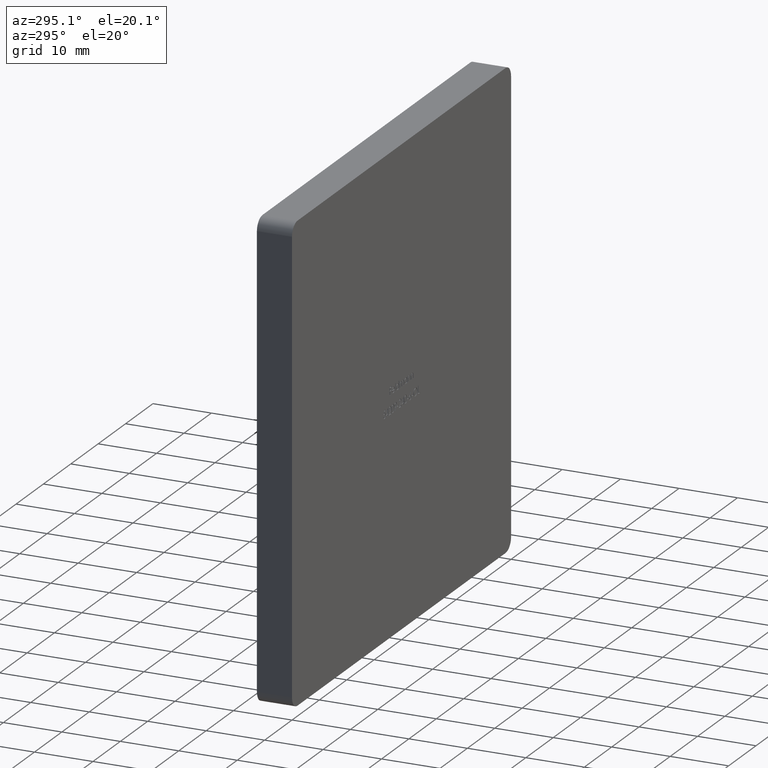
[diagram: clean part render]
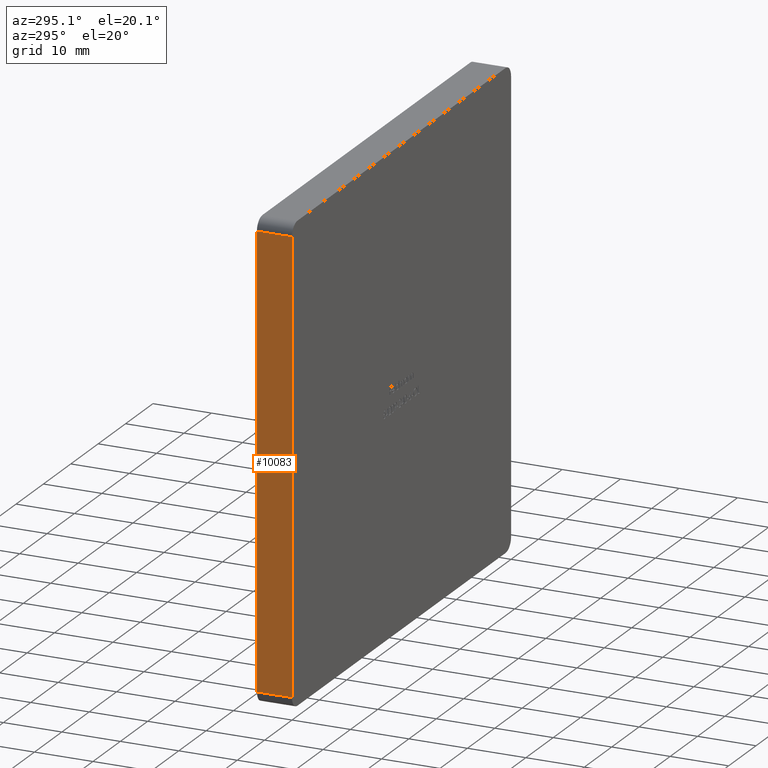
[diagram: same view with one face highlighted and labeled with its STEP entity id]
A machine part, auxiliary view. The second image highlights one B-rep face of the part: STEP entity #10083.
In plain terms, the highlighted planar face has unit normal (1, 0, -0).
Its self-contained STEP definition (entity closure, byte-faithful):
#91 = DIRECTION ( 'NONE',  ( 1.734723475976807094E-16, 0.000000000000000000, 1.000000000000000000 ) ) ;
#1211 = CARTESIAN_POINT ( 'NONE',  ( -39.99999999999999289, 6.000000000000000000, -39.99999999999999289 ) ) ;
#1738 = EDGE_LOOP ( 'NONE', ( #5747, #13507, #13701, #12399 ) ) ;
#1983 = FACE_OUTER_BOUND ( 'NONE', #1738, .T. ) ;
#2444 = AXIS2_PLACEMENT_3D ( 'NONE', #12463, #4261, #6745 ) ;
#2542 = EDGE_CURVE ( 'NONE', #12812, #10252, #8565, .T. ) ;
#2722 = EDGE_CURVE ( 'NONE', #7549, #10252, #8929, .T. ) ;
#2980 = CARTESIAN_POINT ( 'NONE',  ( -39.99999999999999289, 0.000000000000000000, -37.99999999999999289 ) ) ;
#3824 = EDGE_CURVE ( 'NONE', #4268, #7549, #6349, .T. ) ;
#4261 = DIRECTION ( 'NONE',  ( 1.000000000000000000, 0.000000000000000000, -1.734723475976806848E-16 ) ) ;
#4268 = VERTEX_POINT ( 'NONE', #2980 ) ;
#5681 = LINE ( 'NONE', #8658, #6588 ) ;
#5747 = ORIENTED_EDGE ( 'NONE', *, *, #2542, .F. ) ;
#6349 = LINE ( 'NONE', #14015, #11432 ) ;
#6588 = VECTOR ( 'NONE', #8552, 1000.000000000000000 ) ;
#6745 = DIRECTION ( 'NONE',  ( -1.734723475976806848E-16, 0.000000000000000000, -1.000000000000000000 ) ) ;
#6928 = CARTESIAN_POINT ( 'NONE',  ( -39.99999999999999289, 6.000000000000000000, -37.99999999999999289 ) ) ;
#7347 = DIRECTION ( 'NONE',  ( -0.000000000000000000, 1.000000000000000000, -0.000000000000000000 ) ) ;
#7549 = VERTEX_POINT ( 'NONE', #14939 ) ;
#8009 = VECTOR ( 'NONE', #91, 1000.000000000000000 ) ;
#8270 = DIRECTION ( 'NONE',  ( 1.734723475976807094E-16, 0.000000000000000000, 1.000000000000000000 ) ) ;
#8552 = DIRECTION ( 'NONE',  ( 0.000000000000000000, -1.000000000000000000, 0.000000000000000000 ) ) ;
#8565 = LINE ( 'NONE', #1211, #8009 ) ;
#8658 = CARTESIAN_POINT ( 'NONE',  ( -39.99999999999999289, 6.000000000000000000, -37.99999999999999289 ) ) ;
#8929 = LINE ( 'NONE', #10961, #14739 ) ;
#10083 = ADVANCED_FACE ( 'NONE', ( #1983 ), #14887, .F. ) ;
#10252 = VERTEX_POINT ( 'NONE', #10541 ) ;
#10541 = CARTESIAN_POINT ( 'NONE',  ( -39.99999999999997868, 6.000000000000000000, 38.00000000000000711 ) ) ;
#10961 = CARTESIAN_POINT ( 'NONE',  ( -39.99999999999997868, 6.000000000000000000, 38.00000000000000711 ) ) ;
#11432 = VECTOR ( 'NONE', #8270, 1000.000000000000000 ) ;
#12399 = ORIENTED_EDGE ( 'NONE', *, *, #2722, .T. ) ;
#12463 = CARTESIAN_POINT ( 'NONE',  ( -39.99999999999999289, 6.000000000000000000, -39.99999999999999289 ) ) ;
#12812 = VERTEX_POINT ( 'NONE', #6928 ) ;
#13507 = ORIENTED_EDGE ( 'NONE', *, *, #14475, .T. ) ;
#13701 = ORIENTED_EDGE ( 'NONE', *, *, #3824, .T. ) ;
#14015 = CARTESIAN_POINT ( 'NONE',  ( -39.99999999999999289, 0.000000000000000000, -39.99999999999999289 ) ) ;
#14475 = EDGE_CURVE ( 'NONE', #12812, #4268, #5681, .T. ) ;
#14739 = VECTOR ( 'NONE', #7347, 1000.000000000000000 ) ;
#14887 = PLANE ( 'NONE',  #2444 ) ;
#14939 = CARTESIAN_POINT ( 'NONE',  ( -39.99999999999997868, 0.000000000000000000, 38.00000000000000711 ) ) ;